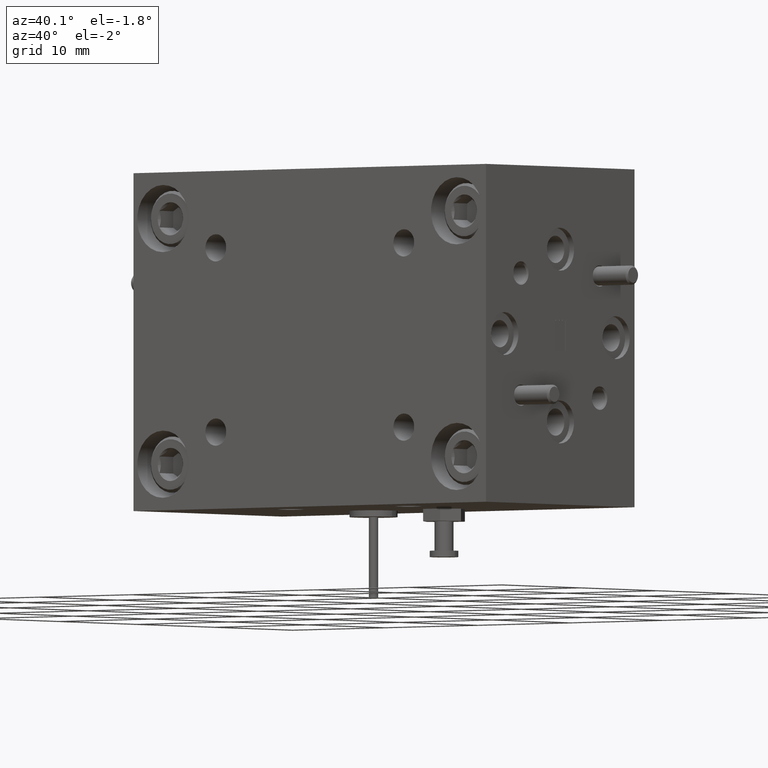
[diagram: clean part render]
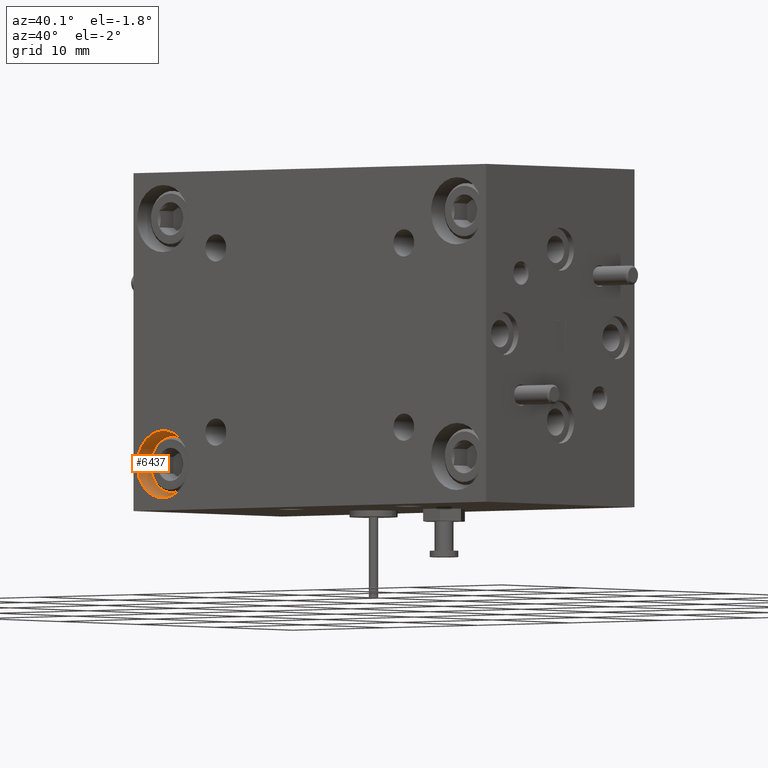
[diagram: same view with one face highlighted and labeled with its STEP entity id]
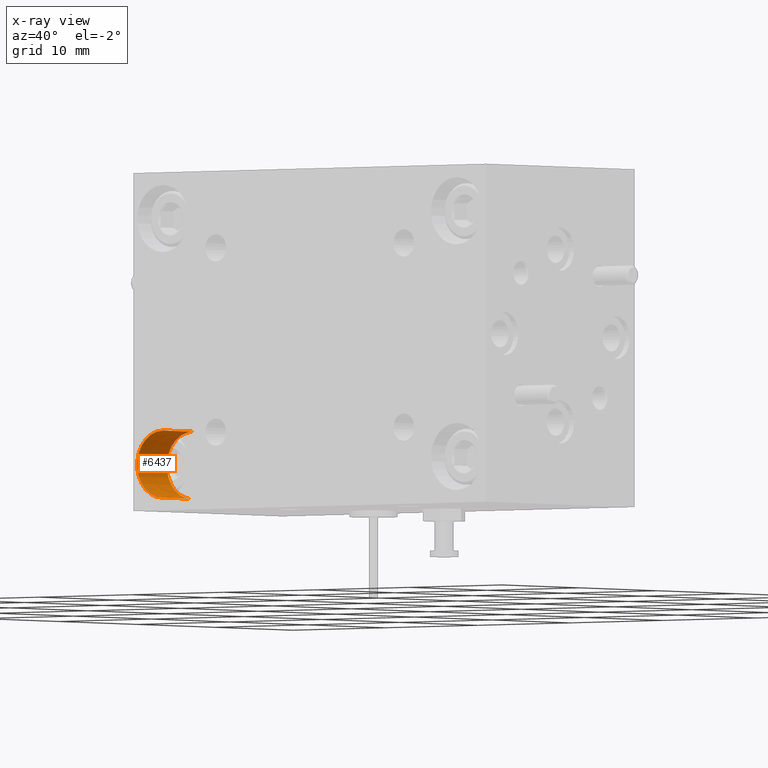
[diagram: x-ray of the same camera — body ghosted, the highlighted face saturated]
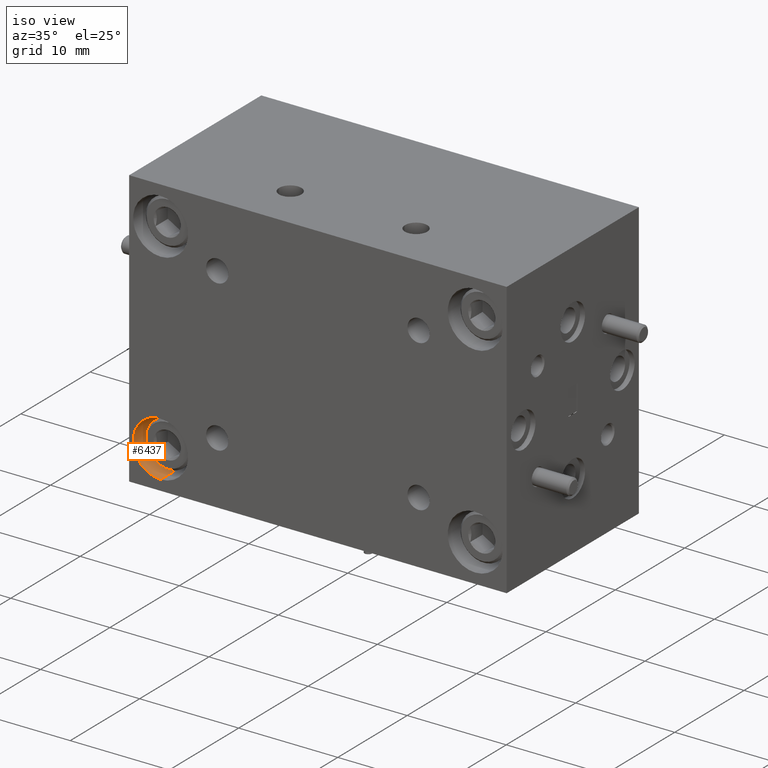
[diagram: same view with one face highlighted and labeled with its STEP entity id]
A machine part, auxiliary view. The second image highlights one B-rep face of the part: STEP entity #6437.
The next image is the same camera in x-ray: the body ghosted, the highlighted face saturated — about 0% of this face is hidden behind the body in this view.
A second angle (iso view) of the same face is appended — the face is thin or edge-on in the first view.
In plain terms, the highlighted cylindrical surface (edge-blend (fillet) strip) has radius 2.7788 mm, axis along (-0, -1, -0).
Its self-contained STEP definition (entity closure, byte-faithful):
#461 = FACE_OUTER_BOUND ( 'NONE', #4695, .T. ) ;
#527 = EDGE_CURVE ( 'NONE', #5546, #2453, #6556, .T. ) ;
#785 = EDGE_CURVE ( 'NONE', #10307, #2453, #6835, .T. ) ;
#837 = AXIS2_PLACEMENT_3D ( 'NONE', #2316, #8778, #6933 ) ;
#1011 = AXIS2_PLACEMENT_3D ( 'NONE', #8497, #2119, #3033 ) ;
#1888 = CARTESIAN_POINT ( 'NONE',  ( -0.4677859036889989200, 1.516480271171051900E-032, -0.1814233499116479600 ) ) ;
#2119 = DIRECTION ( 'NONE',  ( -0.0000000000000000000, -1.000000000000000000, -0.0000000000000000000 ) ) ;
#2316 = CARTESIAN_POINT ( 'NONE',  ( -0.4677859036889989200, 0.1499999999999999900, -0.1814233499116479600 ) ) ;
#2412 = CARTESIAN_POINT ( 'NONE',  ( -0.4677859036889989200, 1.516480271171051900E-032, -0.2908233499116477700 ) ) ;
#2453 = VERTEX_POINT ( 'NONE', #2412 ) ;
#3000 = VERTEX_POINT ( 'NONE', #11878 ) ;
#3033 = DIRECTION ( 'NONE',  ( 0.0000000000000000000, 0.0000000000000000000, -1.000000000000000000 ) ) ;
#3872 = ORIENTED_EDGE ( 'NONE', *, *, #527, .F. ) ;
#4695 = EDGE_LOOP ( 'NONE', ( #9826, #4993, #7490, #3872 ) ) ;
#4980 = CARTESIAN_POINT ( 'NONE',  ( -0.4677859036889989200, 0.0000000000000000000, -0.2908233499116478200 ) ) ;
#4993 = ORIENTED_EDGE ( 'NONE', *, *, #7744, .T. ) ;
#5546 = VERTEX_POINT ( 'NONE', #11012 ) ;
#5571 = DIRECTION ( 'NONE',  ( -0.0000000000000000000, -1.000000000000000000, -0.0000000000000000000 ) ) ;
#6437 = ADVANCED_FACE ( 'NONE', ( #461 ), #10432, .F. ) ;
#6556 = LINE ( 'NONE', #4980, #11221 ) ;
#6708 = CARTESIAN_POINT ( 'NONE',  ( -0.4677859036889989200, 0.0000000000000000000, -0.07202334991164810500 ) ) ;
#6782 = DIRECTION ( 'NONE',  ( -0.0000000000000000000, -1.000000000000000000, -0.0000000000000000000 ) ) ;
#6835 = CIRCLE ( 'NONE', #11842, 0.1093999999999997900 ) ;
#6933 = DIRECTION ( 'NONE',  ( 0.0000000000000000000, 0.0000000000000000000, -1.000000000000000000 ) ) ;
#7490 = ORIENTED_EDGE ( 'NONE', *, *, #785, .T. ) ;
#7744 = EDGE_CURVE ( 'NONE', #3000, #10307, #11995, .T. ) ;
#7869 = CIRCLE ( 'NONE', #837, 0.1093999999999999300 ) ;
#8497 = CARTESIAN_POINT ( 'NONE',  ( -0.4677859036889989200, 0.0000000000000000000, -0.1814233499116479600 ) ) ;
#8778 = DIRECTION ( 'NONE',  ( -0.0000000000000000000, -1.000000000000000000, -0.0000000000000000000 ) ) ;
#8794 = CARTESIAN_POINT ( 'NONE',  ( -0.4677859036889989200, 1.516480271171051900E-032, -0.07202334991164817400 ) ) ;
#9390 = DIRECTION ( 'NONE',  ( 0.0000000000000000000, 0.0000000000000000000, -1.000000000000000000 ) ) ;
#9826 = ORIENTED_EDGE ( 'NONE', *, *, #10639, .F. ) ;
#10307 = VERTEX_POINT ( 'NONE', #8794 ) ;
#10412 = DIRECTION ( 'NONE',  ( -0.0000000000000000000, -1.000000000000000000, -0.0000000000000000000 ) ) ;
#10432 = CYLINDRICAL_SURFACE ( 'NONE', #1011, 0.1093999999999998600 ) ;
#10639 = EDGE_CURVE ( 'NONE', #3000, #5546, #7869, .T. ) ;
#10836 = VECTOR ( 'NONE', #10412, 39.37007874015748100 ) ;
#11012 = CARTESIAN_POINT ( 'NONE',  ( -0.4677859036889989200, 0.1499999999999999900, -0.2908233499116478800 ) ) ;
#11221 = VECTOR ( 'NONE', #6782, 39.37007874015748100 ) ;
#11842 = AXIS2_PLACEMENT_3D ( 'NONE', #1888, #5571, #9390 ) ;
#11878 = CARTESIAN_POINT ( 'NONE',  ( -0.4677859036889989200, 0.1499999999999999900, -0.07202334991164803500 ) ) ;
#11995 = LINE ( 'NONE', #6708, #10836 ) ;